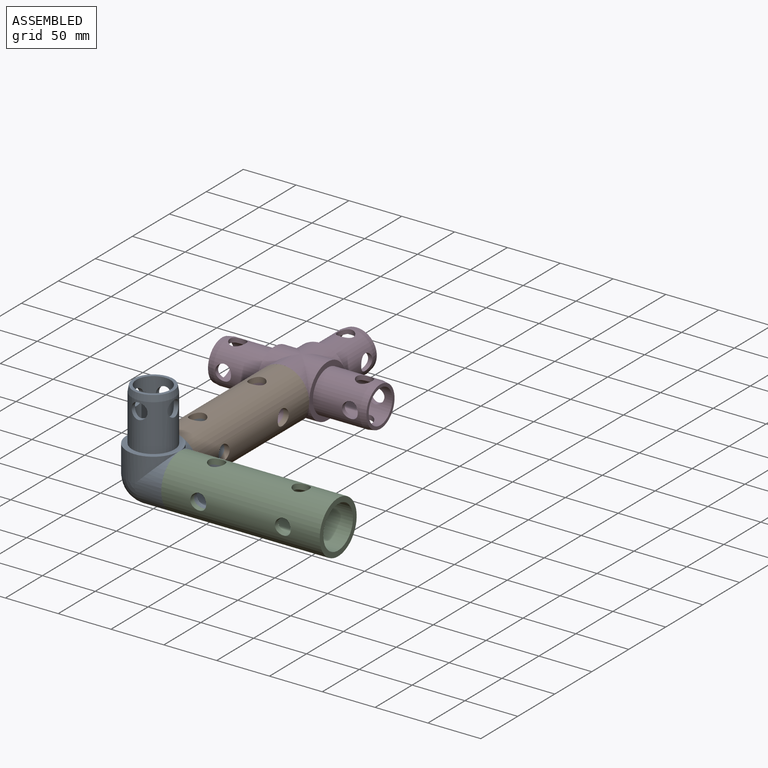
[diagram: assembled view]
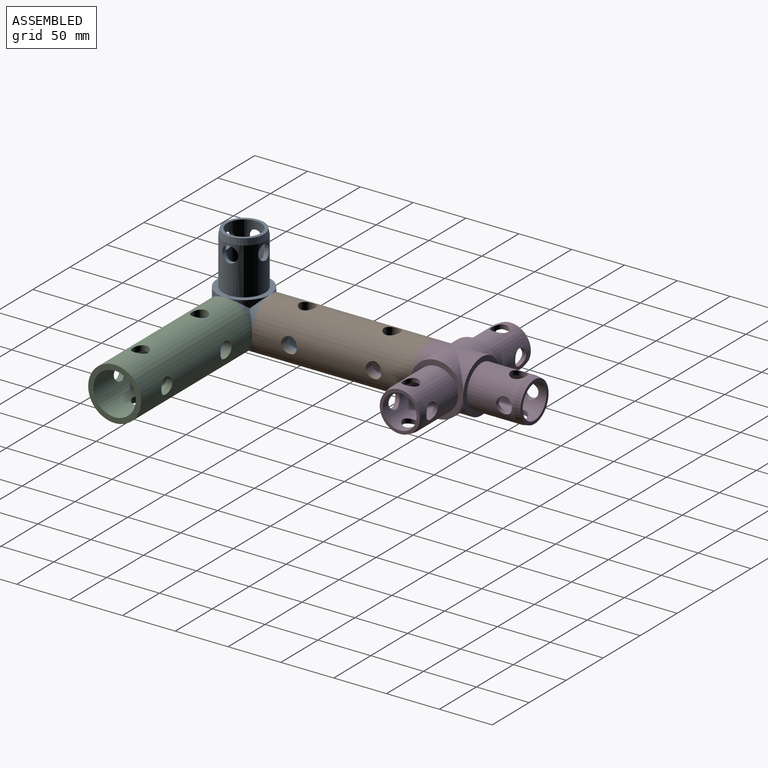
[diagram: assembled view, second angle]
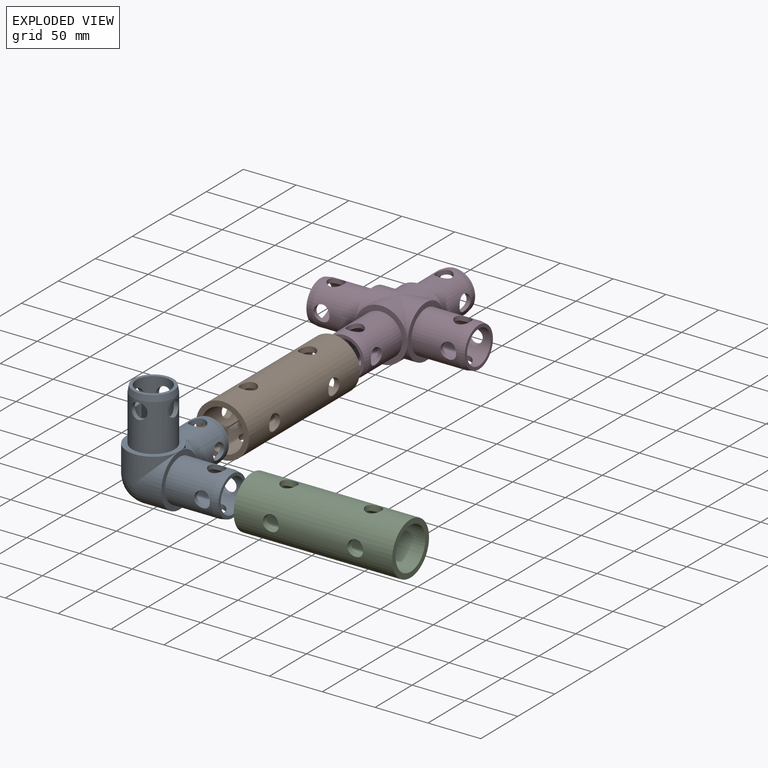
[diagram: exploded view]
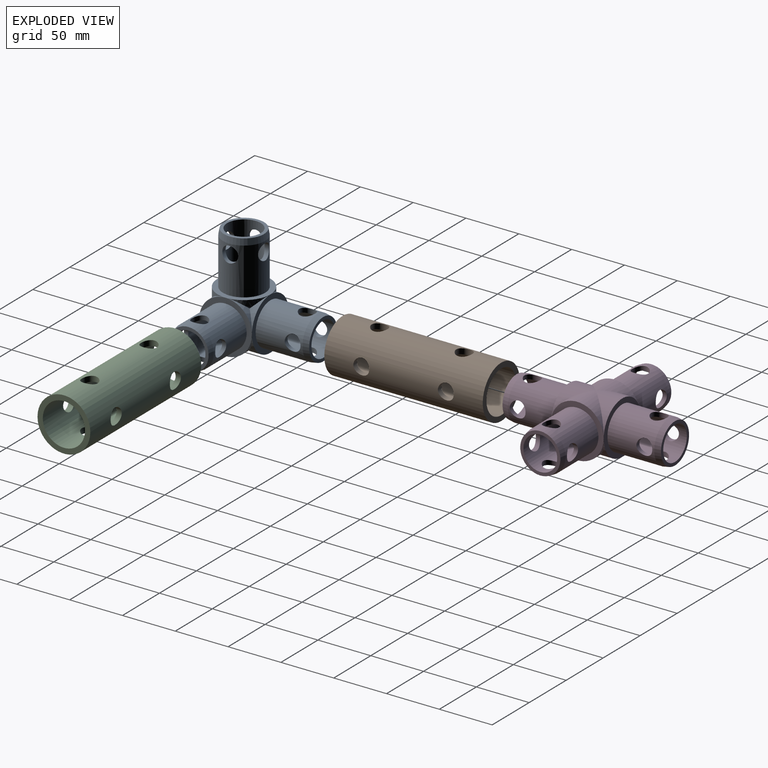
[diagram: exploded view, second angle]
ASSEMBLY  parts=4 mates=3
PART A: 54 faces, bbox 100x100x100 mm
  f0: cylinder r=25mm len=25mm, axis (0,0,1), area 97.9mm2, adj f5,f12,f41
  f1: cylinder r=25mm len=50mm, axis (0,0,1), area 1695.2mm2, adj f4,f12,f42,f50
  f2: cylinder r=16mm len=55.79mm, axis (0,0,1), area 4608.9mm2, adj f8,f10,f13,f14,f15,f16,f27,f52
  f3: cylinder r=16mm len=75mm, axis (0,1,0), area 5091.6mm2, adj f6,f17,f18,f19,f20,f23,f25,f36
  f4: cylinder r=25mm len=50mm, axis (0,1,0), area 1695.2mm2, adj f1,f21,f42,f50
  f5: cylinder r=25mm len=25mm, axis (0,1,0), area 97.9mm2, adj f0,f21,f41
  f6: cylinder r=25mm len=27.31mm, axis (0,0,1), area 315.9mm2, adj f3,f25,f36
  f7: cylinder r=16mm len=16mm, axis (0,1,0), area 256mm2, adj f26,f29,f53
  f8: cylinder r=25mm len=27.31mm, axis (0,1,0), area 315.9mm2, adj f2,f27,f52
  f9: cylinder r=20mm len=44.33mm, axis (0,0,1), area 4851.6mm2, adj f11,f12,f13,f14,f15,f16
  f10: plane 38x38mm, normal (0,0,1), area 329.9mm2, adj f2,f11
  f11: cone r=19mm half-angle=10deg, axis (0,0,-1), area 705.6mm2, adj f9,f10
  f12: plane 50x50mm, normal (0,0,1), area 706.9mm2, adj f0,f1,f9
  f13: cylinder r=7.5mm len=15mm, axis (0,-1,0), area 197.8mm2, adj f2,f9
  f14: cylinder r=7.5mm len=15mm, axis (0,-1,0), area 197.7mm2, adj f2,f9
  f15: cylinder r=7.5mm len=15mm, axis (-1,0,0), area 197.7mm2, adj f2,f9
  f16: cylinder r=7.5mm len=15mm, axis (-1,0,0), area 197.7mm2, adj f2,f9
  f17: cylinder r=7.5mm len=15mm, axis (-1,0,0), area 197.7mm2, adj f3,f24
  f18: cylinder r=7.5mm len=15mm, axis (-1,0,0), area 197.7mm2, adj f3,f24
  f19: cylinder r=7.5mm len=15mm, axis (0,0,1), area 197.7mm2, adj f3,f24
  f20: cylinder r=7.5mm len=15mm, axis (0,0,1), area 197.8mm2, adj f3,f24
  f21: plane 50x50mm, normal (0,1,0), area 706.9mm2, adj f4,f5,f24
  f22: cone r=19mm half-angle=10deg, axis (0,-1,0), area 705.6mm2, adj f23,f24
  f23: plane 38x38mm, normal (0,1,0), area 329.9mm2, adj f3,f22
  f24: cylinder r=20mm len=44.33mm, axis (0,1,0), area 4851.6mm2, adj f17,f18,f19,f20,f21,f22
  f25: plane 25x16mm, normal (0,0,-1), area 169.6mm2, adj f3,f6,f26,f38
  f26: cylinder r=16mm len=16mm, axis (0,0,1), area 256mm2, adj f7,f25,f29
  f27: cylinder r=25mm len=27.31mm, axis (1,0,0), area 315.9mm2, adj f2,f8,f52
  f28: cylinder r=16mm len=16mm, axis (1,0,0), area 150mm2, adj f29,f32,f33
  f29: plane 16x16mm, normal (-1,0,0), area 54.9mm2, adj f7,f26,f28
  f30: cylinder r=25mm len=27.31mm, axis (0,1,0), area 315.9mm2, adj f31,f40,f51
  f31: cylinder r=25mm len=27.31mm, axis (0,0,1), area 315.9mm2, adj f30,f40,f51
  f32: cylinder r=16mm len=16mm, axis (0,1,0), area 150mm2, adj f28,f33,f53
  f33: cylinder r=16mm len=16mm, axis (0,0,1), area 150mm2, adj f28,f32,f34
  f34: plane 16x16mm, normal (0,0,-1), area 54.9mm2, adj f33,f35,f37
  f35: cylinder r=16mm len=16mm, axis (0,1,0), area 256mm2, adj f34,f37,f53
  f36: cylinder r=25mm len=27.31mm, axis (1,0,0), area 315.9mm2, adj f3,f6,f38
  f37: cylinder r=16mm len=16mm, axis (1,0,0), area 256mm2, adj f34,f35,f38
  f38: plane 25x16mm, normal (-1,0,0), area 169.6mm2, adj f3,f25,f36,f37
  f39: plane 50x50mm, normal (1,0,0), area 706.9mm2, adj f41,f42,f43
  f40: cylinder r=16mm len=55.79mm, axis (1,0,0), area 4608.9mm2, adj f30,f31,f44,f46,f47,f48,f49,f51
  f41: cylinder r=25mm len=25mm, axis (1,0,0), area 97.9mm2, adj f0,f5,f39
  f42: cylinder r=25mm len=50mm, axis (1,0,0), area 1695.2mm2, adj f1,f4,f39,f50
  f43: cylinder r=20mm len=44.33mm, axis (1,0,0), area 4851.6mm2, adj f39,f45,f46,f47,f48,f49
  f44: plane 38x38mm, normal (1,0,0), area 329.9mm2, adj f40,f45
  f45: cone r=19mm half-angle=10deg, axis (-1,0,0), area 705.6mm2, adj f43,f44
  f46: cylinder r=7.5mm len=15mm, axis (0,-1,0), area 197.8mm2, adj f40,f43
  f47: cylinder r=7.5mm len=15mm, axis (0,-1,0), area 197.7mm2, adj f40,f43
  f48: cylinder r=7.5mm len=15mm, axis (0,0,1), area 197.7mm2, adj f40,f43
  f49: cylinder r=7.5mm len=15mm, axis (0,0,1), area 197.7mm2, adj f40,f43
  f50: sphere r=25mm, area 981.7mm2, adj f1,f4,f42
  f51: sphere r=25mm, area 227.4mm2, adj f30,f31,f40
  f52: sphere r=25mm, area 227.4mm2, adj f2,f8,f27
  f53: sphere r=16mm, area 1608.5mm2, adj f3,f7,f32,f35
PART B: 12 faces, bbox 50x150x50 mm
  f0: cylinder r=20mm len=150mm, axis (0,1,0), area 17407.4mm2, adj f2,f3,f4,f5,f6,f7,f8,f9
  f1: cylinder r=25mm len=150mm, axis (0,1,0), area 22131.6mm2, adj f2,f3,f4,f5,f6,f7,f8,f9
  f2: plane 50x50mm, normal (0,-1,0), area 706.9mm2, adj f0,f1
  f3: plane 50x50mm, normal (0,1,0), area 706.9mm2, adj f0,f1
  f4: cylinder r=7.5mm len=15mm, axis (-1,0,0), area 242.8mm2, adj f0,f1
  f5: cylinder r=7.5mm len=15mm, axis (-1,0,0), area 242.7mm2, adj f0,f1
  f6: cylinder r=7.5mm len=15mm, axis (-1,0,0), area 242.8mm2, adj f0,f1
  f7: cylinder r=7.5mm len=15mm, axis (-1,0,0), area 242.7mm2, adj f0,f1
  f8: cylinder r=7.5mm len=15mm, axis (0,0,1), area 242.7mm2, adj f0,f1
  f9: cylinder r=7.5mm len=15mm, axis (0,0,1), area 242.8mm2, adj f0,f1
  f10: cylinder r=7.5mm len=15mm, axis (0,0,1), area 242.7mm2, adj f0,f1
  f11: cylinder r=7.5mm len=15mm, axis (0,0,1), area 242.8mm2, adj f0,f1
PART C: same geometry as B
PART D: 52 faces, bbox 50x150x150 mm
  f0: cylinder r=16mm len=55.79mm, axis (0,0,1), area 4580.2mm2, adj f4,f7,f8,f9,f10,f47
  f1: cylinder r=25mm len=50mm, axis (0,0,1), area 713.5mm2, adj f6,f41,f42
  f2: cylinder r=25mm len=50mm, axis (0,0,1), area 713.5mm2, adj f6,f39,f40
  f3: cylinder r=20mm len=44.33mm, axis (0,0,1), area 4851.6mm2, adj f5,f6,f7,f8,f9,f10
  f4: plane 38x38mm, normal (0,0,1), area 329.9mm2, adj f0,f5
  f5: cone r=19mm half-angle=10deg, axis (0,0,-1), area 705.6mm2, adj f3,f4
  f6: plane 50x50mm, normal (0,0,1), area 706.9mm2, adj f1,f2,f3
  f7: cylinder r=7.5mm len=15mm, axis (0,1,0), area 197.7mm2, adj f0,f3
  f8: cylinder r=7.5mm len=15mm, axis (0,1,0), area 197.8mm2, adj f0,f3
  f9: cylinder r=7.5mm len=15mm, axis (1,0,0), area 197.7mm2, adj f0,f3
  f10: cylinder r=7.5mm len=15mm, axis (1,0,0), area 197.7mm2, adj f0,f3
  f11: cylinder r=25mm len=32mm, axis (0,1,0), area 854.2mm2, adj f12
  f12: cylinder r=16mm len=55.79mm, axis (0,0,-1), area 4580.6mm2, adj f11,f16,f19,f20,f21,f22
  f13: cylinder r=25mm len=50mm, axis (0,0,-1), area 713.5mm2, adj f18,f39,f40
  f14: cylinder r=25mm len=50mm, axis (0,0,-1), area 713.5mm2, adj f18,f41,f42
  f15: cylinder r=20mm len=44.33mm, axis (0,0,-1), area 4851.6mm2, adj f17,f18,f19,f20,f21,f22
  f16: plane 38x38mm, normal (0,0,-1), area 329.9mm2, adj f12,f17
  f17: cone r=19mm half-angle=10deg, axis (0,0,1), area 705.6mm2, adj f15,f16
  f18: plane 50x50mm, normal (0,0,-1), area 706.9mm2, adj f13,f14,f15
  f19: cylinder r=7.5mm len=15mm, axis (0,-1,0), area 197.7mm2, adj f12,f15
  f20: cylinder r=7.5mm len=15mm, axis (0,-1,0), area 197.8mm2, adj f12,f15
  f21: cylinder r=7.5mm len=15mm, axis (1,0,0), area 197.7mm2, adj f12,f15
  f22: cylinder r=7.5mm len=15mm, axis (1,0,0), area 197.7mm2, adj f12,f15
  f23: cylinder r=7.5mm len=15mm, axis (1,0,0), area 197.7mm2, adj f30,f43
  f24: cylinder r=7.5mm len=15mm, axis (1,0,0), area 197.7mm2, adj f30,f43
  f25: cylinder r=7.5mm len=15mm, axis (0,0,1), area 197.8mm2, adj f30,f43
  f26: cylinder r=7.5mm len=15mm, axis (0,0,1), area 197.7mm2, adj f30,f43
  f27: plane 50x50mm, normal (0,-1,0), area 706.9mm2, adj f30,f39,f42
  f28: cone r=19mm half-angle=10deg, axis (0,1,0), area 705.6mm2, adj f29,f30
  f29: plane 38x38mm, normal (0,-1,0), area 329.9mm2, adj f28,f43
  f30: cylinder r=20mm len=44.33mm, axis (0,-1,0), area 4851.6mm2, adj f23,f24,f25,f26,f27,f28
  f31: cylinder r=7.5mm len=15mm, axis (1,0,0), area 197.7mm2, adj f38,f44
  f32: cylinder r=7.5mm len=15mm, axis (1,0,0), area 197.7mm2, adj f38,f44
  f33: cylinder r=7.5mm len=15mm, axis (0,0,-1), area 197.8mm2, adj f38,f44
  f34: cylinder r=7.5mm len=15mm, axis (0,0,-1), area 197.7mm2, adj f38,f44
  f35: plane 50x50mm, normal (0,1,0), area 706.9mm2, adj f38,f40,f41
  f36: cone r=19mm half-angle=10deg, axis (0,-1,0), area 705.6mm2, adj f37,f38
  f37: plane 38x38mm, normal (0,1,0), area 329.9mm2, adj f36,f44
  f38: cylinder r=20mm len=44.33mm, axis (0,1,0), area 4851.6mm2, adj f31,f32,f33,f34,f35,f36
  f39: cylinder r=25mm len=50mm, axis (0,1,0), area 713.5mm2, adj f2,f13,f27
  f40: cylinder r=25mm len=50mm, axis (0,1,0), area 713.5mm2, adj f2,f13,f35
  f41: cylinder r=25mm len=50mm, axis (0,1,0), area 713.5mm2, adj f1,f14,f35
  f42: cylinder r=25mm len=50mm, axis (0,1,0), area 713.5mm2, adj f1,f14,f27
  f43: cylinder r=16mm len=55.79mm, axis (0,1,0), area 4579.8mm2, adj f23,f24,f25,f26,f29,f45
  f44: cylinder r=16mm len=55.79mm, axis (0,1,0), area 4580.6mm2, adj f31,f32,f33,f34,f37,f46
  f45: cylinder r=25mm len=32mm, axis (0,0,1), area 853.5mm2, adj f43
  f46: cylinder r=25mm len=32mm, axis (0,0,1), area 854.2mm2, adj f44
  f47: cylinder r=25mm len=32mm, axis (0,1,0), area 853.4mm2, adj f0
  f48: cylinder r=16mm len=32.11mm, axis (0,1,0), area 1024mm2, adj f49,f50
  f49: cylinder r=16mm len=32.11mm, axis (0,0,1), area 1024mm2, adj f48,f51
  f50: cylinder r=16mm len=32.11mm, axis (0,0,1), area 1024mm2, adj f48,f51
  f51: cylinder r=16mm len=32.11mm, axis (0,1,0), area 1024mm2, adj f49,f50
PLACE A at identity
PLACE B t=(0,175,0)mm
PLACE C rot(axis=(0.58,0.58,-0.58),120deg) t=(175,0,0)mm
PLACE D rot(axis=(0,-1,0),90deg) t=(0,200,0)mm
MATE planar D.f30 <-> B.f1  axis (0,-1,0) through (0,175,0)mm
MATE planar C.f1 <-> A.f27  axis (-1,0,0) through (25,0,0)mm
MATE planar B.f1 <-> A.f4  axis (0,-1,0) through (0,25,0)mm
